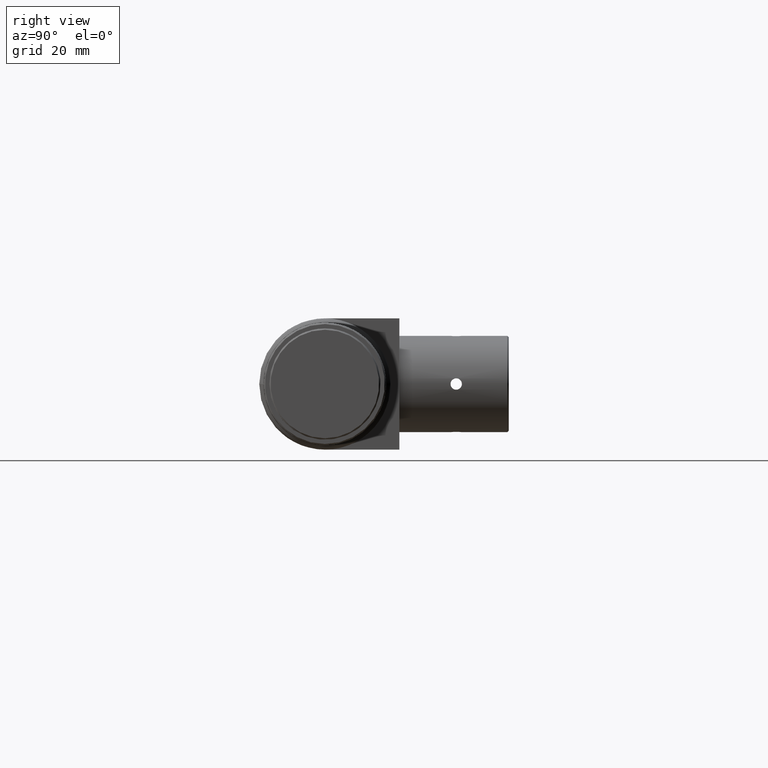
[diagram: clean part render]
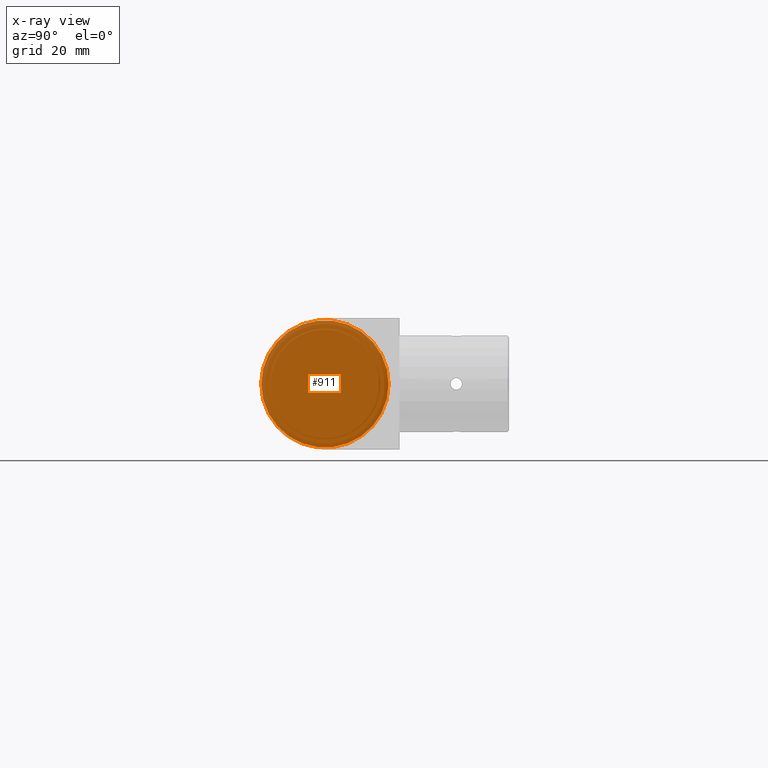
[diagram: x-ray — body ghosted, one internal face saturated and labeled with its STEP entity id]
A machine part, right view, then the same camera in x-ray: the body is ghosted and one INTERNAL B-rep face — a face not visible from any outside direction — is saturated and labeled: STEP entity #911.
In plain terms, the highlighted planar face has unit normal (-1, -0, -0).
Its self-contained STEP definition (entity closure, byte-faithful):
#29 = DIRECTION ( 'NONE',  ( -1.193450434030137738E-16, 1.000000000000000000, 1.691970564993816113E-17 ) ) ;
#30 = DIRECTION ( 'NONE',  ( -1.149412201554173842E-16, 1.000000000000000000, 1.691970564993817654E-17 ) ) ;
#49 = VERTEX_POINT ( 'NONE', #1229 ) ;
#120 = EDGE_CURVE ( 'NONE', #49, #49, #1026, .T. ) ;
#357 = AXIS2_PLACEMENT_3D ( 'NONE', #519, #646, #29 ) ;
#509 = ORIENTED_EDGE ( 'NONE', *, *, #120, .T. ) ;
#519 = CARTESIAN_POINT ( 'NONE',  ( 2.600000000000012079, -1.387778780781445676E-14, 6.938893903907228378E-15 ) ) ;
#642 = DIRECTION ( 'NONE',  ( -1.000000000000000000, -1.149412201554173842E-16, -2.052683297350806256E-48 ) ) ;
#646 = DIRECTION ( 'NONE',  ( 1.000000000000000000, 1.149412201554173842E-16, 1.710569414459005214E-48 ) ) ;
#692 = AXIS2_PLACEMENT_3D ( 'NONE', #925, #642, #30 ) ;
#901 = PLANE ( 'NONE',  #692 ) ;
#911 = ADVANCED_FACE ( 'NONE', ( #1100 ), #901, .F. ) ;
#925 = CARTESIAN_POINT ( 'NONE',  ( 2.600000000000004974, 56.17486957814337956, 31.20951493132240984 ) ) ;
#1009 = EDGE_LOOP ( 'NONE', ( #509 ) ) ;
#1026 = CIRCLE ( 'NONE', #357, 14.53536256314270148 ) ;
#1100 = FACE_OUTER_BOUND ( 'NONE', #1009, .T. ) ;
#1229 = CARTESIAN_POINT ( 'NONE',  ( 2.600000000000010303, 14.53536256314268904, 7.184827959990733263E-15 ) ) ;